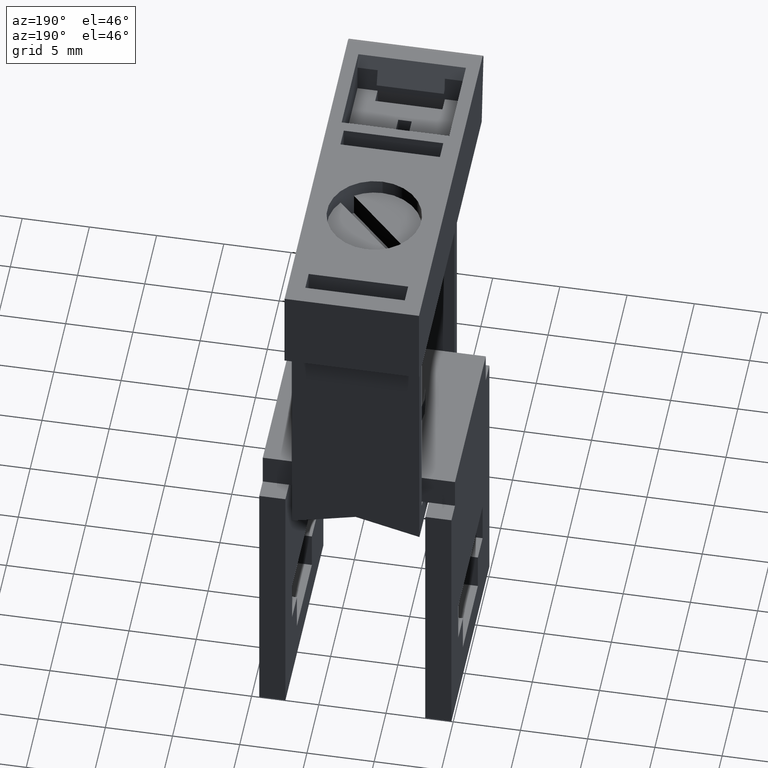
[diagram: clean part render]
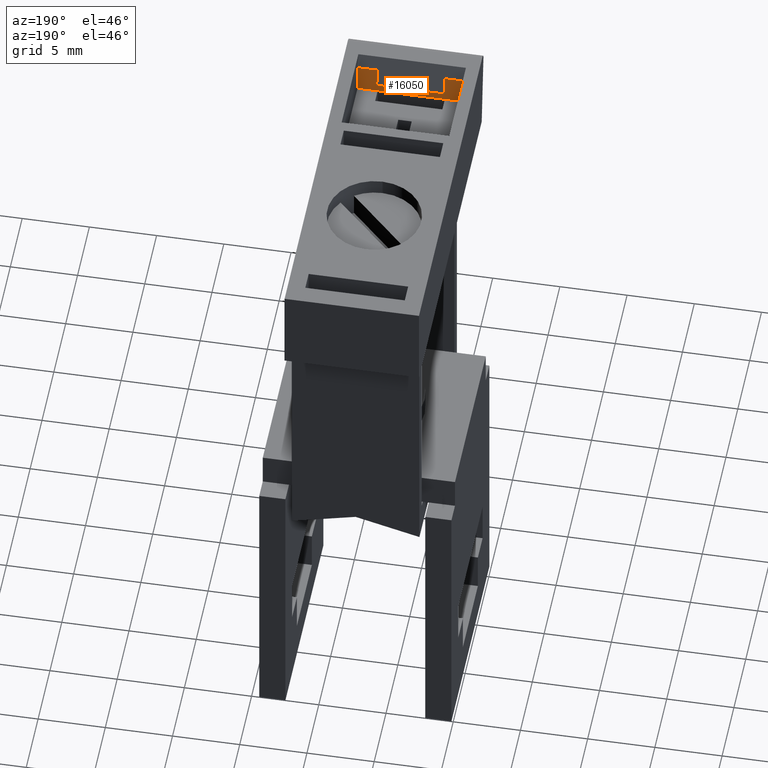
[diagram: same view with one face highlighted and labeled with its STEP entity id]
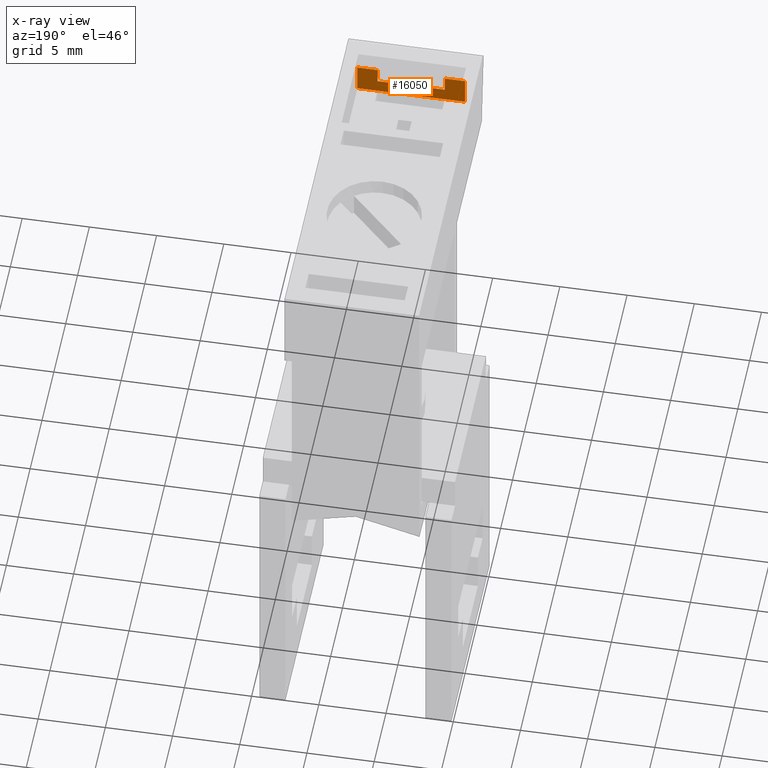
[diagram: x-ray of the same camera — body ghosted, the highlighted face saturated]
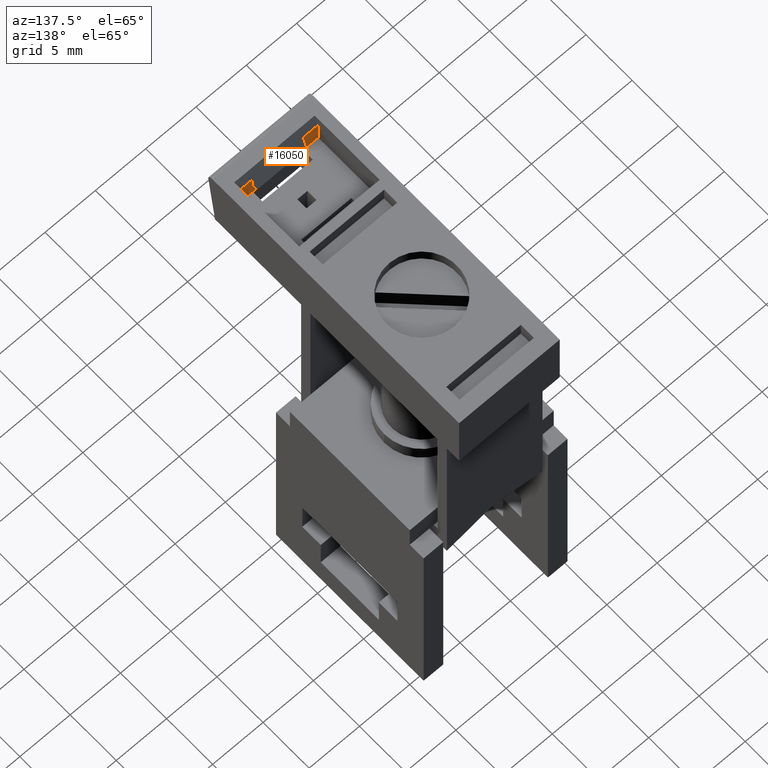
[diagram: same view with one face highlighted and labeled with its STEP entity id]
A machine part, auxiliary view. The second image highlights one B-rep face of the part: STEP entity #16050.
The next image is the same camera in x-ray: the body ghosted, the highlighted face saturated — about 0% of this face is hidden behind the body in this view.
A second angle (auxiliary view) of the same face is appended — the face is thin or edge-on in the first view.
In plain terms, the highlighted planar face has unit normal (-0, -1, 0).
Its self-contained STEP definition (entity closure, byte-faithful):
#9940=CARTESIAN_POINT('',(-26.7056108469938,15.5000000000001,
23.5999999999999));
#9950=DIRECTION('',(-1.,7.28920975411253E-15,-7.24514098033355E-15));
#9960=VECTOR('',#9950,1.);
#9970=LINE('',#9940,#9960);
#9980=CARTESIAN_POINT('',(-22.7056108469938,15.5000000000001,23.6));
#9990=VERTEX_POINT('',#9980);
#10000=CARTESIAN_POINT('',(-24.2056108469938,15.5000000000001,23.6));
#10010=VERTEX_POINT('',#10000);
#10020=EDGE_CURVE('',#9990,#10010,#9970,.T.);
#10240=CARTESIAN_POINT('',(-29.2056108469938,15.5000000000001,
23.5999999999999));
#10250=VERTEX_POINT('',#10240);
#10280=CARTESIAN_POINT('',(-30.7056108469938,15.5000000000001,
23.5999999999999));
#10290=VERTEX_POINT('',#10280);
#10300=EDGE_CURVE('',#10250,#10290,#9970,.T.);
#14470=CARTESIAN_POINT('',(-26.7056108469938,15.4999999999994,23.6));
#14480=DIRECTION('',(-1.,7.28920975411253E-15,-7.24514098033355E-15));
#14490=VECTOR('',#14480,1.);
#14500=LINE('',#14470,#14490);
#14510=EDGE_CURVE('',#10010,#10250,#14500,.T.);
#14880=CARTESIAN_POINT('',(-30.7056108469938,18.7000000000001,
23.5999999999999));
#14890=DIRECTION('',(-7.28920975411253E-15,-1.,-1.03673579278343E-28));
#14900=VECTOR('',#14890,1.);
#14910=LINE('',#14880,#14900);
#14920=CARTESIAN_POINT('',(-30.7056108469938,17.6676779032684,
23.5999999999999));
#14930=VERTEX_POINT('',#14920);
#14940=EDGE_CURVE('',#14930,#10290,#14910,.T.);
#15290=CARTESIAN_POINT('',(-29.2056108469938,17.6676779032684,
23.5999999999999));
#15300=VERTEX_POINT('',#15290);
#15330=CARTESIAN_POINT('',(-29.2056108469938,18.7000000000001,
23.5999999999999));
#15340=DIRECTION('',(-7.28920975411253E-15,-1.,-1.03673579278343E-28));
#15350=VECTOR('',#15340,1.);
#15360=LINE('',#15330,#15350);
#15370=CARTESIAN_POINT('',(-29.2056108469938,16.5000000000001,
23.5999999999999));
#15380=VERTEX_POINT('',#15370);
#15390=EDGE_CURVE('',#15300,#15380,#15360,.T.);
#15570=CARTESIAN_POINT('',(-30.7056108469938,18.7000000000001,
23.5999999999999));
#15580=DIRECTION('',(-7.24514098033355E-15,-5.08622269745749E-29,1.));
#15590=DIRECTION('',(-1.,7.28920975411253E-15,-7.24514098033355E-15));
#15600=AXIS2_PLACEMENT_3D('',#15570,#15580,#15590);
#15610=PLANE('',#15600);
#15620=ORIENTED_EDGE('',*,*,#14940,.F.);
#15630=ORIENTED_EDGE('',*,*,#10300,.T.);
#15640=ORIENTED_EDGE('',*,*,#14510,.T.);
#15650=ORIENTED_EDGE('',*,*,#10020,.T.);
#15660=CARTESIAN_POINT('',(-22.7056108469941,-24.6874456012686,23.6));
#15670=DIRECTION('',(7.28920975411253E-15,1.,1.03673579278343E-28));
#15680=VECTOR('',#15670,1.);
#15690=LINE('',#15660,#15680);
#15700=CARTESIAN_POINT('',(-22.7056108469938,17.6676779032683,23.6));
#15710=VERTEX_POINT('',#15700);
#15720=EDGE_CURVE('',#9990,#15710,#15690,.T.);
#15730=ORIENTED_EDGE('',*,*,#15720,.F.);
#15740=CARTESIAN_POINT('',(-26.7056108469938,17.6676779032683,
23.5999999999999));
#15750=DIRECTION('',(-1.,7.28920975411253E-15,-7.24514098033355E-15));
#15760=VECTOR('',#15750,1.);
#15770=LINE('',#15740,#15760);
#15780=CARTESIAN_POINT('',(-24.2056108469938,17.6676779032683,23.6));
#15790=VERTEX_POINT('',#15780);
#15800=EDGE_CURVE('',#15710,#15790,#15770,.T.);
#15810=ORIENTED_EDGE('',*,*,#15800,.F.);
#15820=CARTESIAN_POINT('',(-24.2056108469938,18.7000000000001,23.6));
#15830=DIRECTION('',(-7.28920975411253E-15,-1.,-1.03673579278343E-28));
#15840=VECTOR('',#15830,1.);
#15850=LINE('',#15820,#15840);
#15860=CARTESIAN_POINT('',(-24.2056108469938,16.5000000000001,23.6));
#15870=VERTEX_POINT('',#15860);
#15880=EDGE_CURVE('',#15790,#15870,#15850,.T.);
#15890=ORIENTED_EDGE('',*,*,#15880,.F.);
#15900=CARTESIAN_POINT('',(-26.7056108469938,16.5000000000001,
23.5999999999999));
#15910=DIRECTION('',(1.,-7.28920975411253E-15,7.24514098033355E-15));
#15920=VECTOR('',#15910,1.);
#15930=LINE('',#15900,#15920);
#15940=EDGE_CURVE('',#15380,#15870,#15930,.T.);
#15950=ORIENTED_EDGE('',*,*,#15940,.T.);
#15960=ORIENTED_EDGE('',*,*,#15390,.T.);
#15970=CARTESIAN_POINT('',(-26.7056108469938,17.6676779032683,
23.5999999999999));
#15980=DIRECTION('',(-1.,7.28920975411253E-15,-7.24514098033355E-15));
#15990=VECTOR('',#15980,1.);
#16000=LINE('',#15970,#15990);
#16010=EDGE_CURVE('',#15300,#14930,#16000,.T.);
#16020=ORIENTED_EDGE('',*,*,#16010,.F.);
#16030=EDGE_LOOP('',(#16020,#15960,#15950,#15890,#15810,#15730,#15650,
#15640,#15630,#15620));
#16040=FACE_OUTER_BOUND('',#16030,.T.);
#16050=ADVANCED_FACE('',(#16040),#15610,.F.);